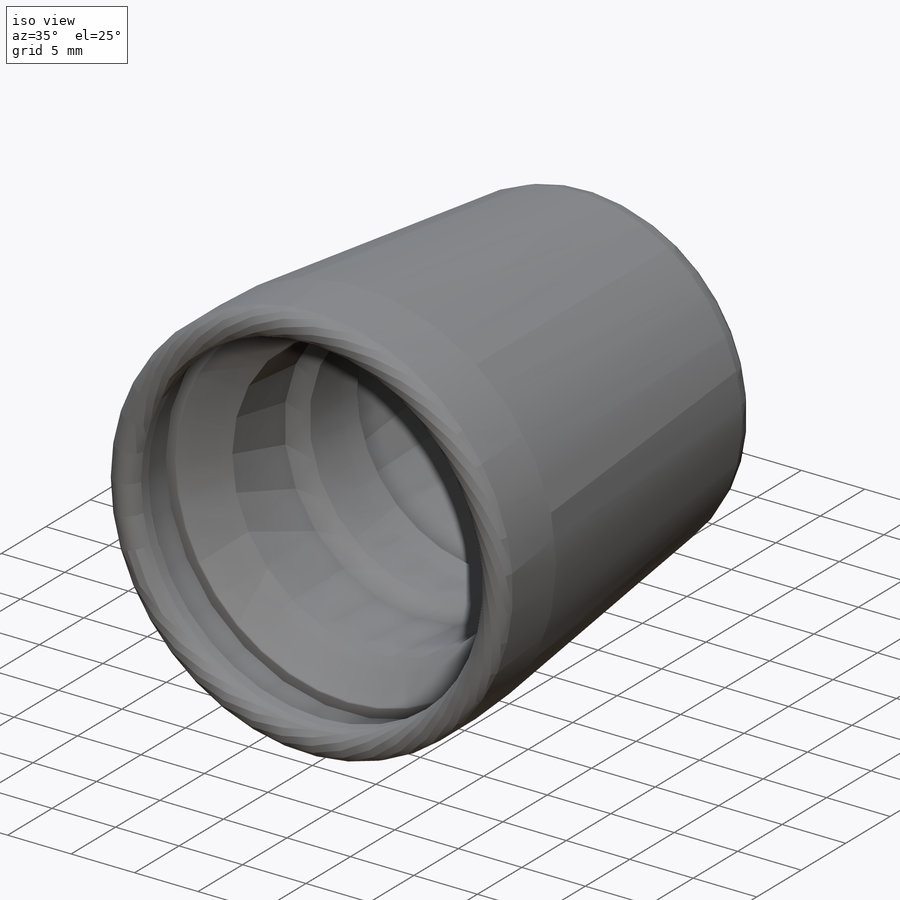
[diagram: iso view]
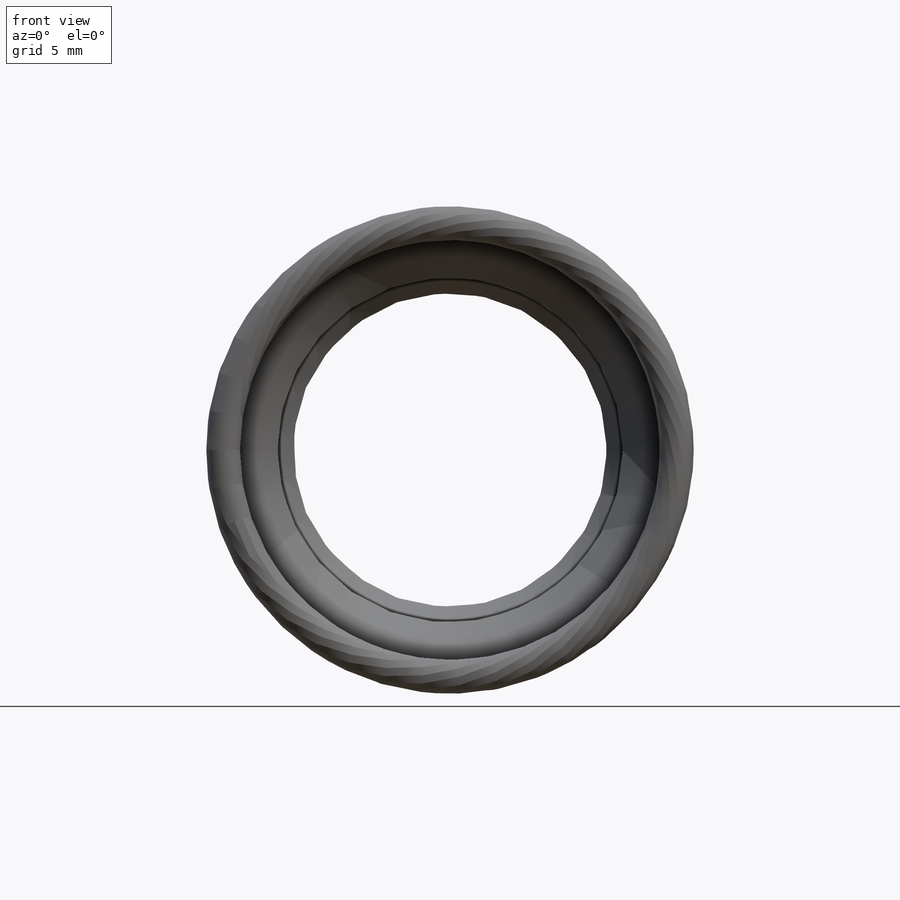
[diagram: front view]
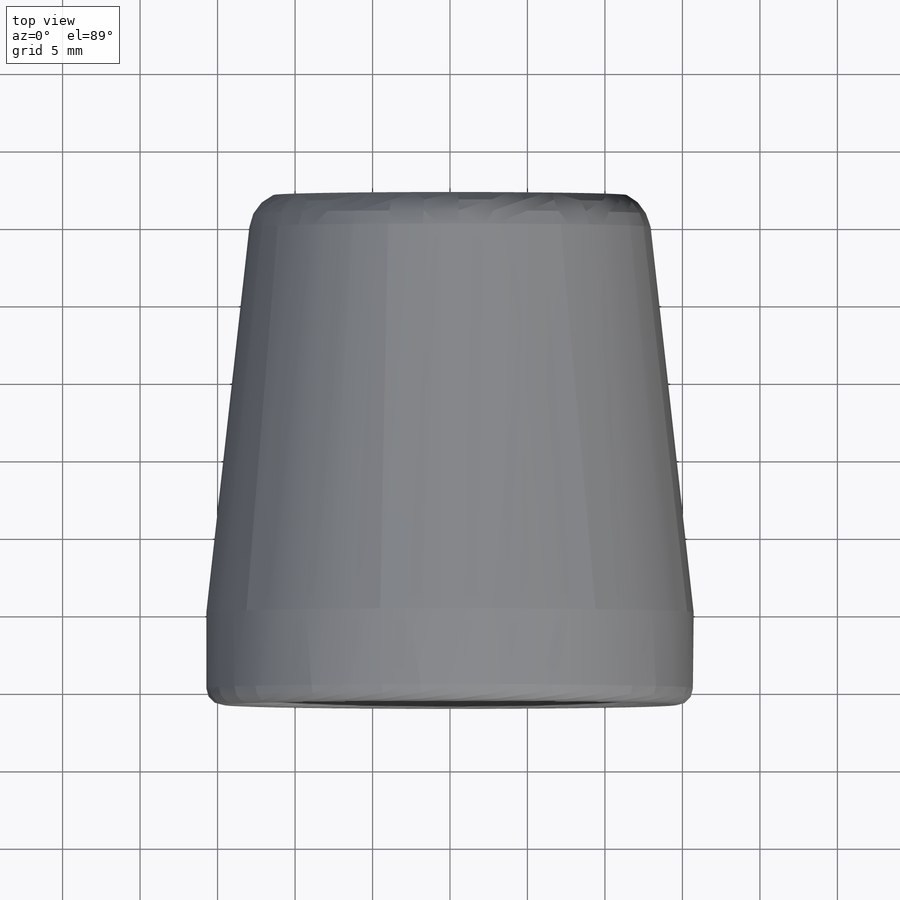
[diagram: top view]
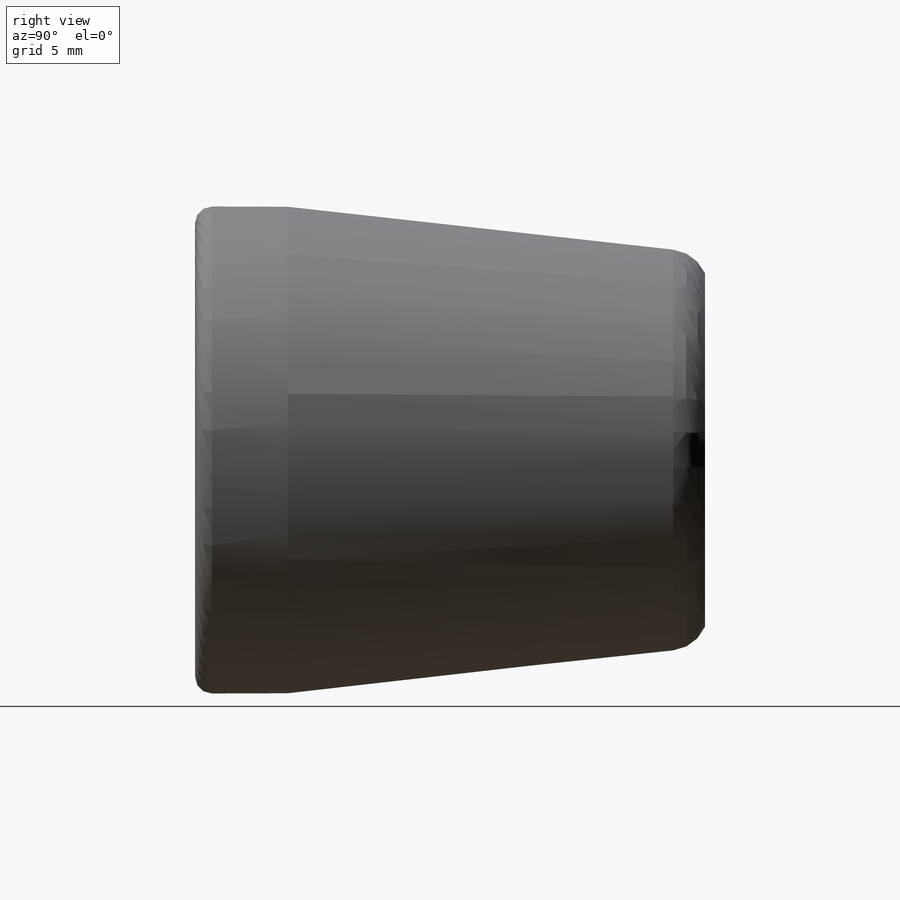
[diagram: right view]
SOLIDWORKS PART (.sldprt)
format: sldprt  version: not decoded by parser v0  size: 421,888 bytes
history: native  units: mm
features: sketch x13, cut_extrude x7, cut_revolve x3, extrude x2, fillet x2, material x1, revolve x1, chamfer x1 (+13 scaffold rows collapsed)
feature tree (43):
  scaffold x13  (default folders/planes/origin — collapsed)
  material  "PTFE (general)"
  sketch  "Sketch1"  dims[D1=~26.622384mm]
  extrude  "Extrude1"  Depth=5.969mm
  sketch  "Sketch3"  dims[D1=~9.46343mm]
  extrude  "Extrude2"  Depth=27.051mm
  sketch  "Sketch4"
  revolve  "Revolve1"  Angle=360deg
  sketch  "Sketch5"  dims[D1=~4.502505mm]
  cut_extrude  "Cut-Extrude1"  Depth=2.032mm
  sketch  "Sketch6"  dims[D1=~6.398105mm]
  cut_extrude  "Cut-Extrude2"  Depth=2.921mm
  sketch  "Sketch7"  dims[D1=13.5636mm]
  cut_extrude  "Cut-Extrude3"  Depth=2.921mm
  sketch  "Sketch8"
  cut_revolve  "Cut-Revolve1"  Angle=360deg
  sketch  "Sketch9"
  cut_extrude  "Cut-Extrude4"  Depth=5.842mm
  sketch  "Sketch10"  dims[D1=~6.883002mm]
  cut_extrude  "Cut-Extrude5"  Depth=1.397mm
  sketch  "Sketch11"
  cut_revolve  "Cut-Revolve2"  Angle=360deg
  sketch  "Sketch12"
  cut_extrude  "Cut-Extrude6"  [1 undecoded]
  sketch  "Sketch13"  dims[D1=~6.778658mm]
  cut_extrude  "Cut-Extrude7"  Depth=12.446mm
  fillet  "Fillet1"  Radius=2.54mm
  sketch  "Sketch14"  dims[D1=1.0795mm]
  cut_revolve  "Cut-Revolve4"  Angle=360deg
  fillet  "Fillet3"  Radius=0.127mm
  chamfer  "Chamfer1"  Distance=0.381mm Angle=45deg
decode coverage: 23 of 29 modeling features carry decoded parameters
note: ~ marks probable driven/reference dimensions
note: 1 parameter value undecoded
note: suppression state not decoded; provenance and decode notes live in map.json
